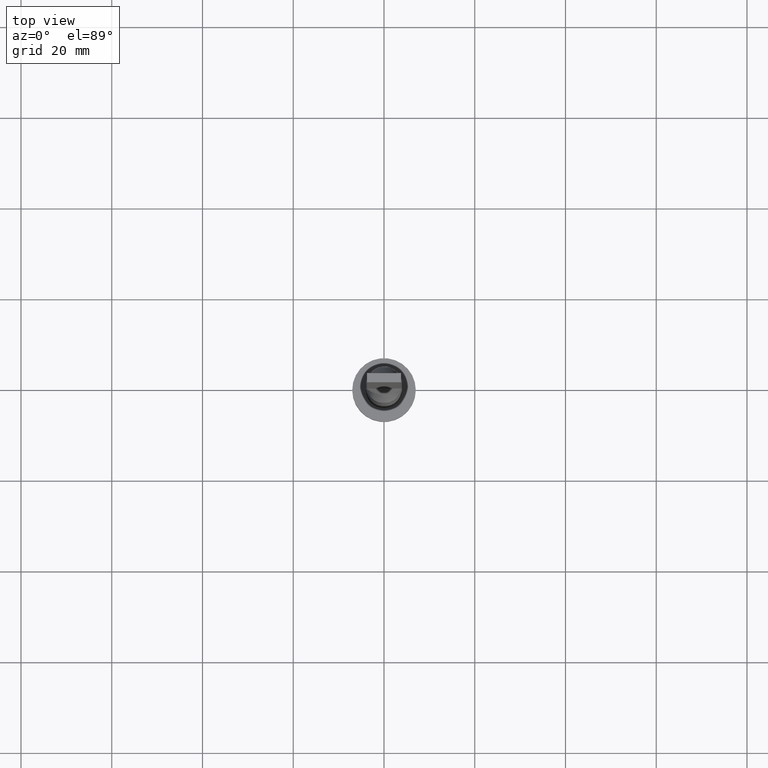
[diagram: clean part render]
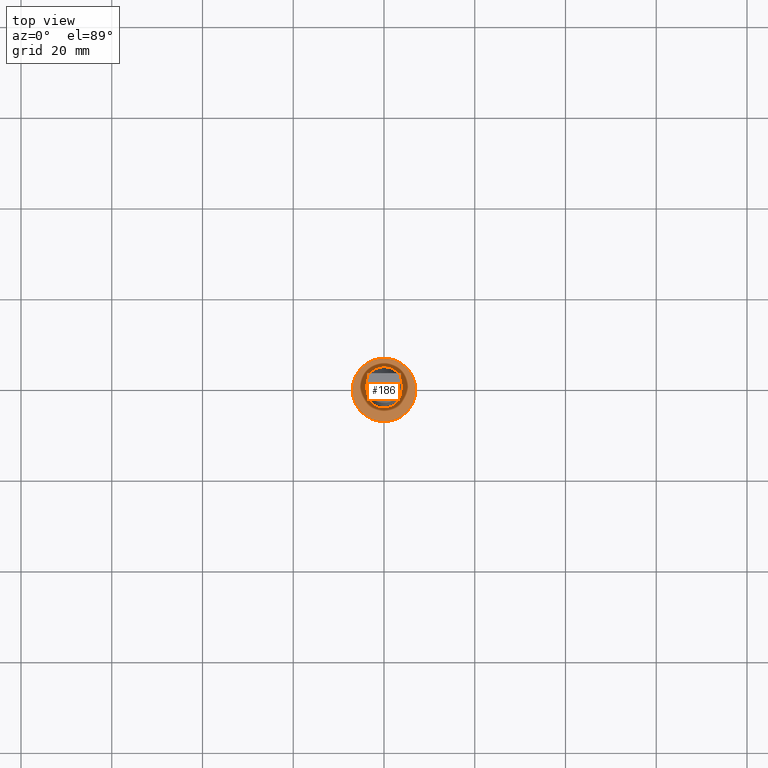
[diagram: same view with one face highlighted and labeled with its STEP entity id]
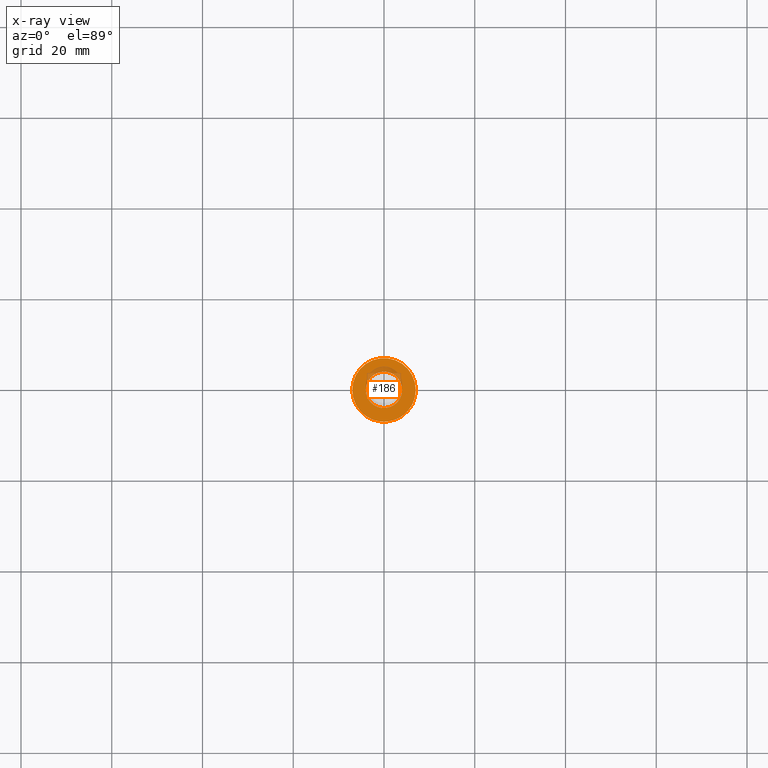
[diagram: x-ray of the same camera — body ghosted, the highlighted face saturated]
A machine part, top view. The second image highlights one B-rep face of the part: STEP entity #186.
The next image is the same camera in x-ray: the body ghosted, the highlighted face saturated — about 9% of this face is hidden behind the body in this view.
In plain terms, the highlighted planar face has unit normal (0, 0, 1).
Its self-contained STEP definition (entity closure, byte-faithful):
#6 = VERTEX_POINT ( 'NONE', #203 ) ;
#12 = EDGE_CURVE ( 'NONE', #388, #6, #452, .T. ) ;
#17 = EDGE_CURVE ( 'NONE', #472, #421, #157, .T. ) ;
#32 = CIRCLE ( 'NONE', #52, 4.000000000000000000 ) ;
#43 = FACE_BOUND ( 'NONE', #297, .T. ) ;
#46 = AXIS2_PLACEMENT_3D ( 'NONE', #443, #485, #263 ) ;
#47 = ORIENTED_EDGE ( 'NONE', *, *, #12, .F. ) ;
#52 = AXIS2_PLACEMENT_3D ( 'NONE', #224, #262, #445 ) ;
#69 = EDGE_CURVE ( 'NONE', #421, #472, #518, .T. ) ;
#82 = AXIS2_PLACEMENT_3D ( 'NONE', #524, #530, #402 ) ;
#132 = PLANE ( 'NONE',  #176 ) ;
#157 = CIRCLE ( 'NONE', #46, 7.000000000000000000 ) ;
#160 = DIRECTION ( 'NONE',  ( 0.000000000000000000, 0.000000000000000000, 1.000000000000000000 ) ) ;
#176 = AXIS2_PLACEMENT_3D ( 'NONE', #225, #316, #580 ) ;
#178 = DIRECTION ( 'NONE',  ( 1.000000000000000000, 0.000000000000000000, 0.000000000000000000 ) ) ;
#186 = ADVANCED_FACE ( 'NONE', ( #43, #411 ), #132, .T. ) ;
#203 = CARTESIAN_POINT ( 'NONE',  ( -4.000000000000000000, 0.000000000000000000, 5.000000000000000000 ) ) ;
#224 = CARTESIAN_POINT ( 'NONE',  ( 0.000000000000000000, 0.000000000000000000, 5.000000000000000000 ) ) ;
#225 = CARTESIAN_POINT ( 'NONE',  ( 0.000000000000000000, 0.000000000000000000, 5.000000000000000000 ) ) ;
#262 = DIRECTION ( 'NONE',  ( 0.000000000000000000, 0.000000000000000000, 1.000000000000000000 ) ) ;
#263 = DIRECTION ( 'NONE',  ( 1.000000000000000000, 0.000000000000000000, 0.000000000000000000 ) ) ;
#266 = CARTESIAN_POINT ( 'NONE',  ( 7.000000000000000000, 8.572527594031473190E-16, 5.000000000000000000 ) ) ;
#272 = CARTESIAN_POINT ( 'NONE',  ( 4.000000000000000000, 4.898587196589412829E-16, 5.000000000000000000 ) ) ;
#297 = EDGE_LOOP ( 'NONE', ( #428, #47 ) ) ;
#316 = DIRECTION ( 'NONE',  ( 0.000000000000000000, 0.000000000000000000, 1.000000000000000000 ) ) ;
#320 = ORIENTED_EDGE ( 'NONE', *, *, #69, .T. ) ;
#325 = AXIS2_PLACEMENT_3D ( 'NONE', #381, #160, #178 ) ;
#335 = EDGE_LOOP ( 'NONE', ( #320, #339 ) ) ;
#339 = ORIENTED_EDGE ( 'NONE', *, *, #17, .T. ) ;
#381 = CARTESIAN_POINT ( 'NONE',  ( 0.000000000000000000, 0.000000000000000000, 5.000000000000000000 ) ) ;
#388 = VERTEX_POINT ( 'NONE', #272 ) ;
#398 = CARTESIAN_POINT ( 'NONE',  ( -7.000000000000000000, 0.000000000000000000, 5.000000000000000000 ) ) ;
#402 = DIRECTION ( 'NONE',  ( 1.000000000000000000, 0.000000000000000000, 0.000000000000000000 ) ) ;
#411 = FACE_OUTER_BOUND ( 'NONE', #335, .T. ) ;
#421 = VERTEX_POINT ( 'NONE', #398 ) ;
#428 = ORIENTED_EDGE ( 'NONE', *, *, #459, .F. ) ;
#443 = CARTESIAN_POINT ( 'NONE',  ( 0.000000000000000000, 0.000000000000000000, 5.000000000000000000 ) ) ;
#445 = DIRECTION ( 'NONE',  ( 1.000000000000000000, 0.000000000000000000, 0.000000000000000000 ) ) ;
#452 = CIRCLE ( 'NONE', #325, 4.000000000000000000 ) ;
#459 = EDGE_CURVE ( 'NONE', #6, #388, #32, .T. ) ;
#472 = VERTEX_POINT ( 'NONE', #266 ) ;
#485 = DIRECTION ( 'NONE',  ( 0.000000000000000000, 0.000000000000000000, 1.000000000000000000 ) ) ;
#518 = CIRCLE ( 'NONE', #82, 7.000000000000000000 ) ;
#524 = CARTESIAN_POINT ( 'NONE',  ( 0.000000000000000000, 0.000000000000000000, 5.000000000000000000 ) ) ;
#530 = DIRECTION ( 'NONE',  ( 0.000000000000000000, 0.000000000000000000, 1.000000000000000000 ) ) ;
#580 = DIRECTION ( 'NONE',  ( 1.000000000000000000, 0.000000000000000000, -0.000000000000000000 ) ) ;